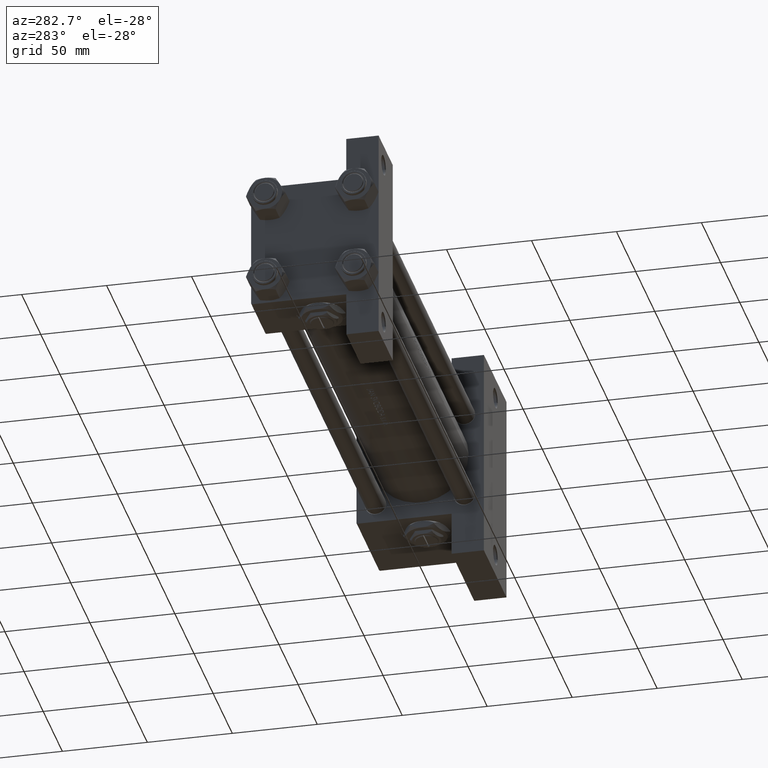
[diagram: clean part render]
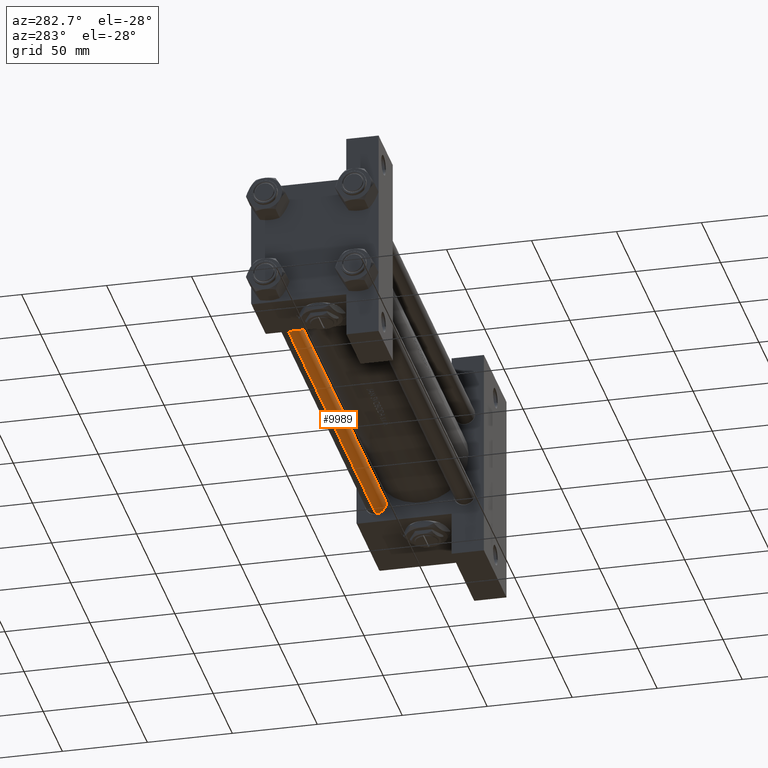
[diagram: same view with one face highlighted and labeled with its STEP entity id]
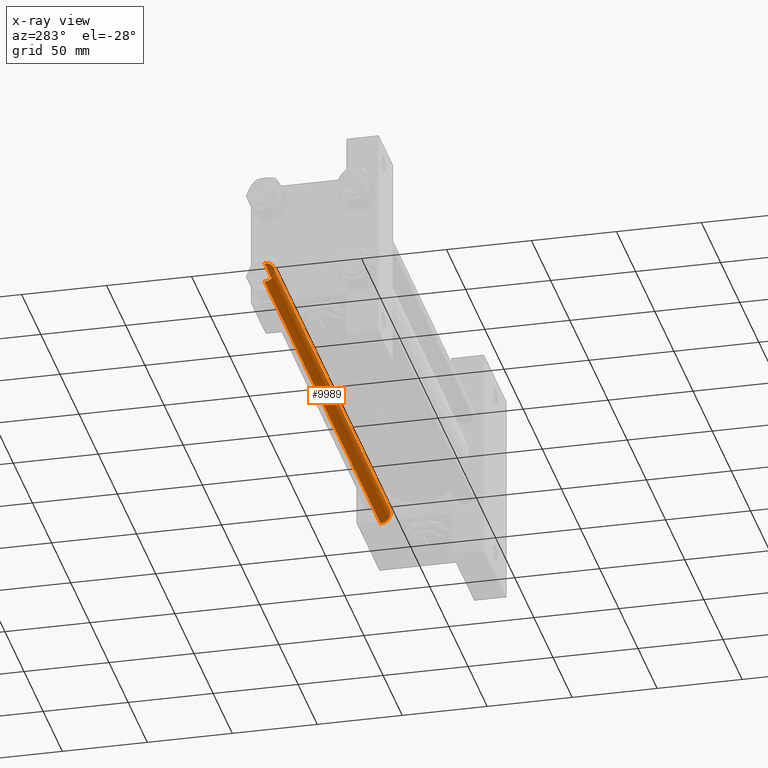
[diagram: x-ray of the same camera — body ghosted, the highlighted face saturated]
A machine part, auxiliary view. The second image highlights one B-rep face of the part: STEP entity #9989.
The next image is the same camera in x-ray: the body ghosted, the highlighted face saturated — about 0% of this face is hidden behind the body in this view.
In plain terms, the highlighted cylindrical surface (edge-blend (fillet) strip) has radius 6 mm, axis along (1, -0, -0).
Its self-contained STEP definition (entity closure, byte-faithful):
#682 = CIRCLE ( 'NONE', #37025, 6.000000000000000888 ) ;
#1281 = CARTESIAN_POINT ( 'NONE',  ( 0.000000000000000000, 0.000000000000000000, 303.5000000000000000 ) ) ;
#1750 = DIRECTION ( 'NONE',  ( 1.000000000000000000, 0.000000000000000000, 0.000000000000000000 ) ) ;
#5268 = CYLINDRICAL_SURFACE ( 'NONE', #42210, 6.000000000000000888 ) ;
#5915 = ORIENTED_EDGE ( 'NONE', *, *, #33080, .T. ) ;
#9311 = DIRECTION ( 'NONE',  ( -1.000000000000000000, 0.000000000000000000, 0.000000000000000000 ) ) ;
#9566 = CARTESIAN_POINT ( 'NONE',  ( 0.000000000000000000, 0.000000000000000000, 304.0000000000000000 ) ) ;
#9989 = ADVANCED_FACE ( 'NONE', ( #43718 ), #5268, .T. ) ;
#10194 = ORIENTED_EDGE ( 'NONE', *, *, #17088, .T. ) ;
#13374 = CARTESIAN_POINT ( 'NONE',  ( 0.000000000000000000, 0.000000000000000000, 0.4999999999999449329 ) ) ;
#15060 = ORIENTED_EDGE ( 'NONE', *, *, #40127, .F. ) ;
#16353 = ORIENTED_EDGE ( 'NONE', *, *, #40459, .T. ) ;
#16998 = DIRECTION ( 'NONE',  ( -0.000000000000000000, -0.000000000000000000, -1.000000000000000000 ) ) ;
#17088 = EDGE_CURVE ( 'NONE', #44860, #39069, #29386, .T. ) ;
#19343 = VERTEX_POINT ( 'NONE', #32760 ) ;
#21768 = CARTESIAN_POINT ( 'NONE',  ( -6.000000000000000888, 0.000000000000000000, 303.5000000000000000 ) ) ;
#24552 = DIRECTION ( 'NONE',  ( 0.000000000000000000, 0.000000000000000000, -1.000000000000000000 ) ) ;
#26001 = VERTEX_POINT ( 'NONE', #21768 ) ;
#26854 = LINE ( 'NONE', #48895, #45881 ) ;
#27991 = VECTOR ( 'NONE', #16998, 1000.000000000000000 ) ;
#28299 = EDGE_LOOP ( 'NONE', ( #15060, #16353, #5915, #10194 ) ) ;
#29386 = CIRCLE ( 'NONE', #38289, 6.000000000000000888 ) ;
#32760 = CARTESIAN_POINT ( 'NONE',  ( 6.000000000000000888, 7.347880794884120722E-16, 303.5000000000000000 ) ) ;
#33080 = EDGE_CURVE ( 'NONE', #26001, #44860, #47378, .T. ) ;
#37025 = AXIS2_PLACEMENT_3D ( 'NONE', #1281, #24552, #40225 ) ;
#38289 = AXIS2_PLACEMENT_3D ( 'NONE', #13374, #39184, #1750 ) ;
#39069 = VERTEX_POINT ( 'NONE', #41485 ) ;
#39184 = DIRECTION ( 'NONE',  ( -0.000000000000000000, -0.000000000000000000, 1.000000000000000000 ) ) ;
#40127 = EDGE_CURVE ( 'NONE', #19343, #39069, #26854, .T. ) ;
#40225 = DIRECTION ( 'NONE',  ( 1.000000000000000000, 0.000000000000000000, 0.000000000000000000 ) ) ;
#40433 = CARTESIAN_POINT ( 'NONE',  ( -6.000000000000000888, 0.000000000000000000, 0.4999999999999449329 ) ) ;
#40459 = EDGE_CURVE ( 'NONE', #19343, #26001, #682, .T. ) ;
#41485 = CARTESIAN_POINT ( 'NONE',  ( 6.000000000000000888, 7.347880794884120722E-16, 0.4999999999999449329 ) ) ;
#42210 = AXIS2_PLACEMENT_3D ( 'NONE', #9566, #44477, #9311 ) ;
#43566 = CARTESIAN_POINT ( 'NONE',  ( -6.000000000000000888, 0.000000000000000000, 304.0000000000000000 ) ) ;
#43718 = FACE_OUTER_BOUND ( 'NONE', #28299, .T. ) ;
#44477 = DIRECTION ( 'NONE',  ( -0.000000000000000000, -0.000000000000000000, -1.000000000000000000 ) ) ;
#44860 = VERTEX_POINT ( 'NONE', #40433 ) ;
#45881 = VECTOR ( 'NONE', #49878, 1000.000000000000000 ) ;
#47378 = LINE ( 'NONE', #43566, #27991 ) ;
#48895 = CARTESIAN_POINT ( 'NONE',  ( 6.000000000000000888, 7.347880794884120722E-16, 304.0000000000000000 ) ) ;
#49878 = DIRECTION ( 'NONE',  ( -0.000000000000000000, -0.000000000000000000, -1.000000000000000000 ) ) ;